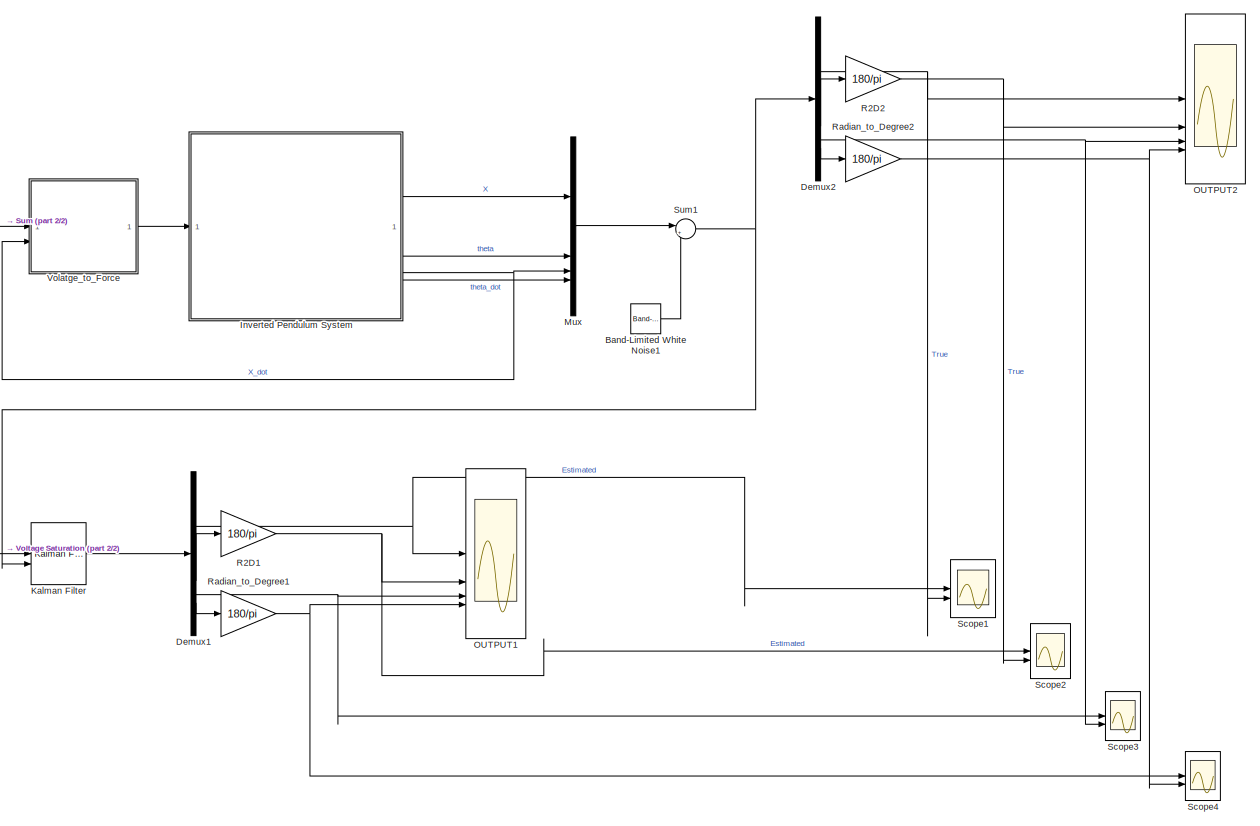
[diagram: root canvas - part 1/2, most of the canvas]
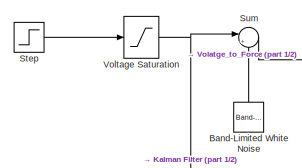
[diagram: root canvas - part 2/2, top left region]
MODEL slx_b82f830bd8da
KIND model
CONFIG AbsTol = auto
CONFIG EnableMultiTasking = off
CONFIG FixedStep = 0.01
CONFIG MaxStep = auto
CONFIG MinStep = auto
CONFIG RelTol = 1e-3
CONFIG SampleTimeConstraint = Unconstrained
CONFIG SolverName = FixedStepAuto
CONFIG StartTime = 0.0
CONFIG StopTime = 10.0
BLOCK [Reference] Band-Limited White Noise  REF=simulink/Sources/Band-Limited
White Noise
  NameLocation = right
  SourceBlock = simulink/Sources/Band-Limited\nWhite Noise
  SourceType = Band-Limited White Noise.
BLOCK [Reference] Band-Limited White Noise1  REF=simulink/Sources/Band-Limited
White Noise
  SourceBlock = simulink/Sources/Band-Limited\nWhite Noise
  SourceType = Band-Limited White Noise.
BLOCK [Demux] Demux1
BLOCK [Demux] Demux2
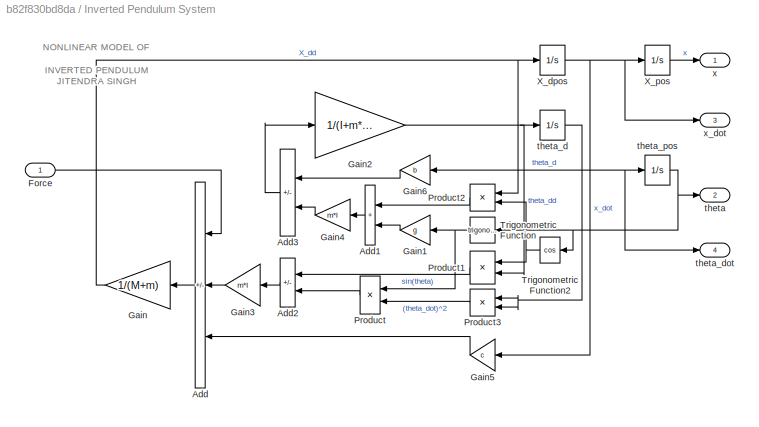
BLOCK [SubSystem] Inverted Pendulum System
BLOCK [Sum] Inverted Pendulum System/Add
  IconShape = rectangular
  Inputs = ++-
  NameLocation = top
BLOCK [Sum] Inverted Pendulum System/Add1
  IconShape = rectangular
  NameLocation = top
BLOCK [Sum] Inverted Pendulum System/Add2
  IconShape = rectangular
  Inputs = -+
  NameLocation = top
BLOCK [Sum] Inverted Pendulum System/Add3
  IconShape = rectangular
  Inputs = --
  NameLocation = top
BLOCK [Inport] Inverted Pendulum System/Force
BLOCK [Gain] Inverted Pendulum System/Gain
  Gain = 1/(M+m)
  NameLocation = top
BLOCK [Gain] Inverted Pendulum System/Gain1
  Gain = g
  NameLocation = top
BLOCK [Gain] Inverted Pendulum System/Gain2
  Gain = 1/(I+m*(l^2))
BLOCK [Gain] Inverted Pendulum System/Gain3
  Gain = m*l
  NameLocation = top
BLOCK [Gain] Inverted Pendulum System/Gain4
  Gain = m*l
  NameLocation = top
BLOCK [Gain] Inverted Pendulum System/Gain5
  Gain = c
  NameLocation = top
BLOCK [Gain] Inverted Pendulum System/Gain6
  Gain = b
  NameLocation = top
BLOCK [Product] Inverted Pendulum System/Product
  NameLocation = top
BLOCK [Product] Inverted Pendulum System/Product1
  NameLocation = top
BLOCK [Product] Inverted Pendulum System/Product2
  NameLocation = top
BLOCK [Product] Inverted Pendulum System/Product3
  NameLocation = top
BLOCK [Trigonometry] Inverted Pendulum System/Trigonometric Function
  NameLocation = top
BLOCK [Trigonometry] Inverted Pendulum System/Trigonometric Function2
  NameLocation = top
  Operator = cos
BLOCK [Integrator] Inverted Pendulum System/X_dpos
BLOCK [Integrator] Inverted Pendulum System/X_pos
  InitialCondition = 0.2
BLOCK [Outport] Inverted Pendulum System/theta
  Port = 2
  VectorParamsAs1DForOutWhenUnconnected = off
BLOCK [Integrator] Inverted Pendulum System/theta_d
BLOCK [Outport] Inverted Pendulum System/theta_dot
  Port = 4
  VectorParamsAs1DForOutWhenUnconnected = off
BLOCK [Integrator] Inverted Pendulum System/theta_pos
  InitialCondition = 160*(pi/180)
BLOCK [Outport] Inverted Pendulum System/x
  VectorParamsAs1DForOutWhenUnconnected = off
BLOCK [Outport] Inverted Pendulum System/x_dot
  Port = 3
  VectorParamsAs1DForOutWhenUnconnected = off
BLOCK [Reference] Kalman Filter  REF=ctrlSharedLib/Kalman Filter
  LibrarySourceBlock = cstblocks/State Estimation/Kalman Filter
  SourceBlock = ctrlSharedLib/Kalman Filter
  SourceType = ctrlKalmanFilter
BLOCK [Mux] Mux
  DisplayOption = bar
BLOCK [Scope] OUTPUT1
  Floating = off
  NumInputPorts = 4
  ScopeSpecificationString = Simulink.scopes.TimeScopeBlockCfg('CurrentConfiguration', extmgr.ConfigurationSet(extmgr.Configuration('Core','General UI',true,'FigureColor',[1 1 1]),extmgr.Configuration('Core','Source UI',true),extmgr.Configuration('Sources','WiredSimulink',true,'DataLoggingVariableName','ScopeData1'),extmgr.Configuration('Visuals','Time Domain',true,'SerializedDisplays',{struct('MinYLimReal','-0.2529','MaxYLim...<+3992ch>
BLOCK [Scope] OUTPUT2
  Floating = off
  NumInputPorts = 4
  ScopeSpecificationString = Simulink.scopes.TimeScopeBlockCfg('CurrentConfiguration', extmgr.ConfigurationSet(extmgr.Configuration('Core','General UI',true,'FigureColor',[1 1 1]),extmgr.Configuration('Core','Source UI',true),extmgr.Configuration('Sources','WiredSimulink',true,'DataLoggingVariableName','ScopeData3'),extmgr.Configuration('Visuals','Time Domain',true,'SerializedDisplays',{struct('MinYLimReal','-0.03548','MaxYLi...<+3980ch>
BLOCK [Gain] R2D1
  Gain = 180/pi
BLOCK [Gain] R2D2
  Gain = 180/pi
BLOCK [Gain] Radian_to_Degree1
  Gain = 180/pi
BLOCK [Gain] Radian_to_Degree2
  Gain = 180/pi
BLOCK [Scope] Scope1
  Floating = off
  NumInputPorts = 2
  ScopeSpecificationString = Simulink.scopes.TimeScopeBlockCfg('CurrentConfiguration', extmgr.ConfigurationSet(extmgr.Configuration('Core','General UI',true,'FigureColor',[1 1 1]),extmgr.Configuration('Core','Source UI',true),extmgr.Configuration('Sources','WiredSimulink',true,'DataLoggingVariableName','ScopeData4'),extmgr.Configuration('Visuals','Time Domain',true,'SerializedDisplays',{struct('MinYLimReal','-0.26585','MaxYLi...<+2326ch>
BLOCK [Scope] Scope2
  Floating = off
  NumInputPorts = 2
  ScopeSpecificationString = Simulink.scopes.TimeScopeBlockCfg('CurrentConfiguration', extmgr.ConfigurationSet(extmgr.Configuration('Core','General UI',true,'FigureColor',[1 1 1]),extmgr.Configuration('Core','Source UI',true),extmgr.Configuration('Sources','WiredSimulink',true,'DataLoggingVariableName','ScopeData5'),extmgr.Configuration('Visuals','Time Domain',true,'SerializedDisplays',{struct('MinYLimReal','-193.8232','MaxYL...<+1633ch>
BLOCK [Scope] Scope3
  Floating = off
  NumInputPorts = 2
  ScopeSpecificationString = Simulink.scopes.TimeScopeBlockCfg('CurrentConfiguration', extmgr.ConfigurationSet(extmgr.Configuration('Core','General UI',true),extmgr.Configuration('Core','Source UI',true),extmgr.Configuration('Sources','WiredSimulink',true,'DataLoggingVariableName','ScopeData6'),extmgr.Configuration('Visuals','Time Domain',true,'SerializedDisplays',{struct('MinYLimReal','-0.7417','MaxYLimReal','0.80491','YLabe...<+1465ch>
BLOCK [Scope] Scope4
  Floating = off
  NumInputPorts = 2
  ScopeSpecificationString = Simulink.scopes.TimeScopeBlockCfg('CurrentConfiguration', extmgr.ConfigurationSet(extmgr.Configuration('Core','General UI',true),extmgr.Configuration('Core','Source UI',true),extmgr.Configuration('Sources','WiredSimulink',true,'DataLoggingVariableName','ScopeData7'),extmgr.Configuration('Visuals','Time Domain',true,'SerializedDisplays',{struct('MinYLimReal','-1301.20853','MaxYLimReal','1004.35667'...<+1507ch>
BLOCK [Step] Step
  SampleTime = 0
BLOCK [Sum] Sum
  Inputs = |++
BLOCK [Sum] Sum1
  Inputs = |++
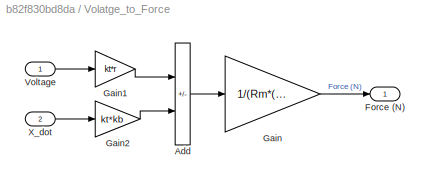
BLOCK [SubSystem] Volatge_to_Force
BLOCK [Sum] Volatge_to_Force/Add
  IconShape = rectangular
  Inputs = +-
BLOCK [Outport] Volatge_to_Force/Force (N)
  VectorParamsAs1DForOutWhenUnconnected = off
BLOCK [Gain] Volatge_to_Force/Gain
  Gain = 1/(Rm*(r)^2)
BLOCK [Gain] Volatge_to_Force/Gain1
  Gain = kt*r
BLOCK [Gain] Volatge_to_Force/Gain2
  Gain = kt*kb
BLOCK [Inport] Volatge_to_Force/Voltage
  NameLocation = top
BLOCK [Inport] Volatge_to_Force/X_dot
  Port = 2
BLOCK [Saturate] Voltage Saturation
  LowerLimit = -12
  NameLocation = top
  UpperLimit = 12
ANNOTATION Inverted Pendulum System: NONLINEAR MODEL OF INVERTED PENDULUM JITENDRA SINGH
LINE Band-Limited White Noise1:1 -> Sum1:2
LINE Band-Limited White Noise:1 -> Sum:2
NET Demux1:1 -> OUTPUT1:1, Scope1:1
LINE Demux1:2 -> R2D1:1
NET Demux1:3 -> OUTPUT1:3, Scope3:1
LINE Demux1:4 -> Radian_to_Degree1:1
NET Demux2:1 -> OUTPUT2:1, Scope1:2
LINE Demux2:2 -> R2D2:1
NET Demux2:3 -> OUTPUT2:3, Scope3:2
LINE Demux2:4 -> Radian_to_Degree2:1
LINE Inverted Pendulum System/Add1:1 -> Inverted Pendulum System/Gain4:1
LINE Inverted Pendulum System/Add2:1 -> Inverted Pendulum System/Gain3:1
LINE Inverted Pendulum System/Add3:1 -> Inverted Pendulum System/Gain2:1
LINE Inverted Pendulum System/Add:1 -> Inverted Pendulum System/Gain:1
LINE Inverted Pendulum System/Force:1 -> Inverted Pendulum System/Add:1
LINE Inverted Pendulum System/Gain1:1 -> Inverted Pendulum System/Add1:2
NET Inverted Pendulum System/Gain2:1 -> Inverted Pendulum System/Product1:2, Inverted Pendulum System/theta_d:1
LINE Inverted Pendulum System/Gain3:1 -> Inverted Pendulum System/Add:2
LINE Inverted Pendulum System/Gain4:1 -> Inverted Pendulum System/Add3:2
LINE Inverted Pendulum System/Gain5:1 -> Inverted Pendulum System/Add:3
LINE Inverted Pendulum System/Gain6:1 -> Inverted Pendulum System/Add3:1
NET Inverted Pendulum System/Gain:1 -> Inverted Pendulum System/Product2:1, Inverted Pendulum System/X_dpos:1
LINE Inverted Pendulum System/Product1:1 -> Inverted Pendulum System/Add2:1
LINE Inverted Pendulum System/Product2:1 -> Inverted Pendulum System/Add1:1
LINE Inverted Pendulum System/Product3:1 -> Inverted Pendulum System/Product:2
LINE Inverted Pendulum System/Product:1 -> Inverted Pendulum System/Add2:2
NET Inverted Pendulum System/Trigonometric Function2:1 -> Inverted Pendulum System/Product1:1, Inverted Pendulum System/Product2:2
NET Inverted Pendulum System/Trigonometric Function:1 -> Inverted Pendulum System/Gain1:1, Inverted Pendulum System/Product:1
NET Inverted Pendulum System/X_dpos:1 -> Inverted Pendulum System/Gain5:1, Inverted Pendulum System/X_pos:1, Inverted Pendulum System/x_dot:1
LINE Inverted Pendulum System/X_pos:1 -> Inverted Pendulum System/x:1
NET Inverted Pendulum System/theta_d:1 -> Inverted Pendulum System/Gain6:1, Inverted Pendulum System/Product3:1, Inverted Pendulum System/Product3:2, Inverted Pendulum System/theta_dot:1, Inverted Pendulum System/theta_pos:1
NET Inverted Pendulum System/theta_pos:1 -> Inverted Pendulum System/Trigonometric Function2:1, Inverted Pendulum System/Trigonometric Function:1, Inverted Pendulum System/theta:1
LINE Inverted Pendulum System:1 -> Mux:1
LINE Inverted Pendulum System:2 -> Mux:2
NET Inverted Pendulum System:3 -> Mux:3, Volatge_to_Force:2
LINE Inverted Pendulum System:4 -> Mux:4
LINE Kalman Filter:1 -> Demux1:1
LINE Mux:1 -> Sum1:1
NET R2D1:1 -> OUTPUT1:2, Scope2:1
NET R2D2:1 -> OUTPUT2:2, Scope2:2
NET Radian_to_Degree1:1 -> OUTPUT1:4, Scope4:1
NET Radian_to_Degree2:1 -> OUTPUT2:4, Scope4:2
LINE Step:1 -> Voltage Saturation:1
NET Sum1:1 -> Demux2:1, Kalman Filter:2
LINE Sum:1 -> Volatge_to_Force:1
LINE Volatge_to_Force/Add:1 -> Volatge_to_Force/Gain:1
LINE Volatge_to_Force/Gain1:1 -> Volatge_to_Force/Add:1
LINE Volatge_to_Force/Gain2:1 -> Volatge_to_Force/Add:2
LINE Volatge_to_Force/Gain:1 -> Volatge_to_Force/Force (N):1
LINE Volatge_to_Force/Voltage:1 -> Volatge_to_Force/Gain1:1
LINE Volatge_to_Force/X_dot:1 -> Volatge_to_Force/Gain2:1
LINE Volatge_to_Force:1 -> Inverted Pendulum System:1
NET Voltage Saturation:1 -> Kalman Filter:1, Sum:1
note: NET lines group one-source signal fan-out (src -> all destinations, sorted); 1:1 wires keep LINE
